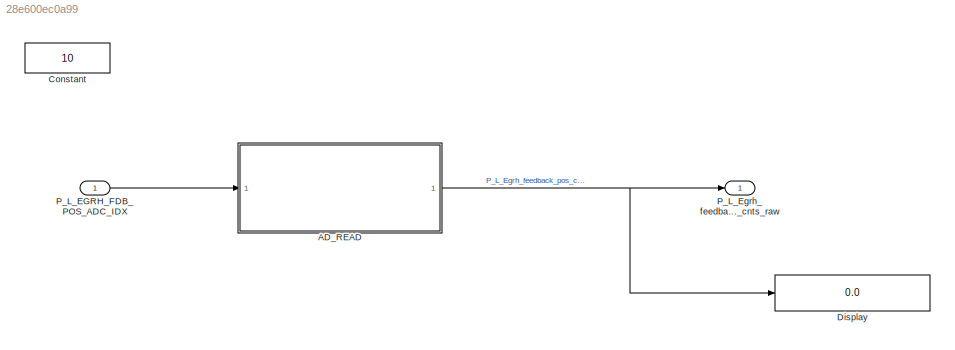
MODEL slx_28e600ec0a99
KIND model
CONFIG AbsTol = auto
CONFIG EnableMultiTasking = off
CONFIG FixedStep = 0.01
CONFIG MaxStep = auto
CONFIG MinStep = auto
CONFIG RelTol = 1e-3
CONFIG SampleTimeConstraint = Unconstrained
CONFIG Solver = FixedStepDiscrete
CONFIG SolverName = FixedStepDiscrete
CONFIG StartTime = 0.0
CONFIG StopTime = 10.0
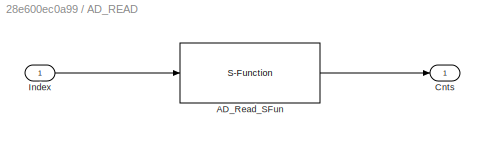
BLOCK [SubSystem] AD_READ
  Ports = [1, 1]
  RequestExecContextInheritance = off
BLOCK [S-Function] AD_READ/AD_Read_SFun
  EnableBusSupport = off
  FunctionName = AD_Read
  Parameters = full_driver_name_unicode,uint8(12)
  Ports = [1, 1]
  SFcnIsStateOwnerBlock = off
  SFunctionDeploymentMode = off
BLOCK [Outport] AD_READ/Cnts
  IconDisplay = Port number
BLOCK [Inport] AD_READ/Index
  IconDisplay = Port number
BLOCK [Constant] Constant
  Commented = on
  OutDataTypeStr = uint8
  Value = 10
BLOCK [Display] Display
  Decimation = 1
  Ports = [1]
BLOCK [Inport] P_L_EGRH_FDB_POS_ADC_IDX
  IconDisplay = Port number
BLOCK [Outport] P_L_Egrh_feedback_pos_cnts_raw
  IconDisplay = Port number
LINE AD_READ/AD_Read_SFun:1 -> AD_READ/Cnts:1
LINE AD_READ/Index:1 -> AD_READ/AD_Read_SFun:1
NET AD_READ:1 -> Display:1, P_L_Egrh_feedback_pos_cnts_raw:1
LINE P_L_EGRH_FDB_POS_ADC_IDX:1 -> AD_READ:1
note: NET lines group one-source signal fan-out (src -> all destinations, sorted); 1:1 wires keep LINE
